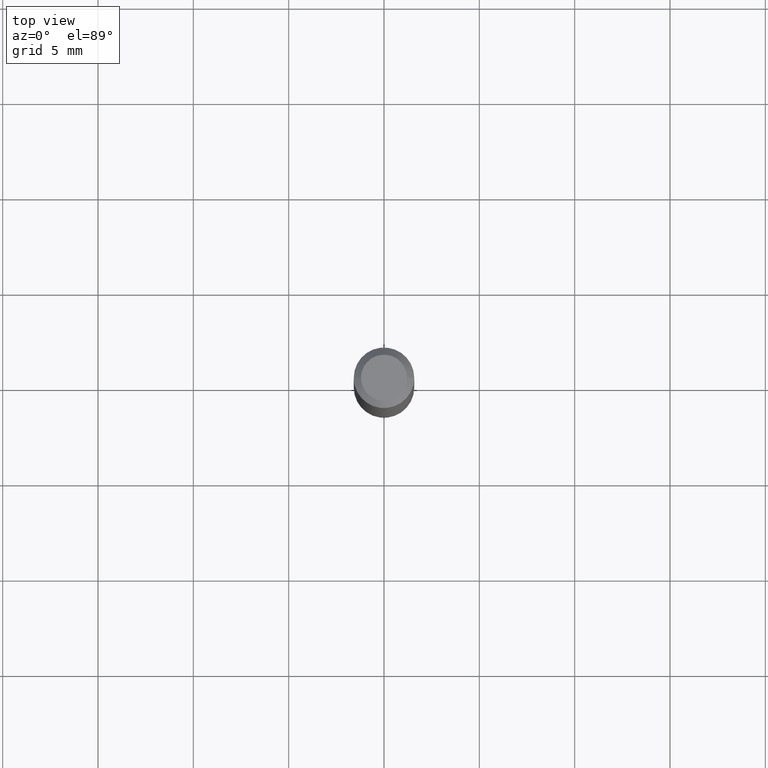
[diagram: clean part render]
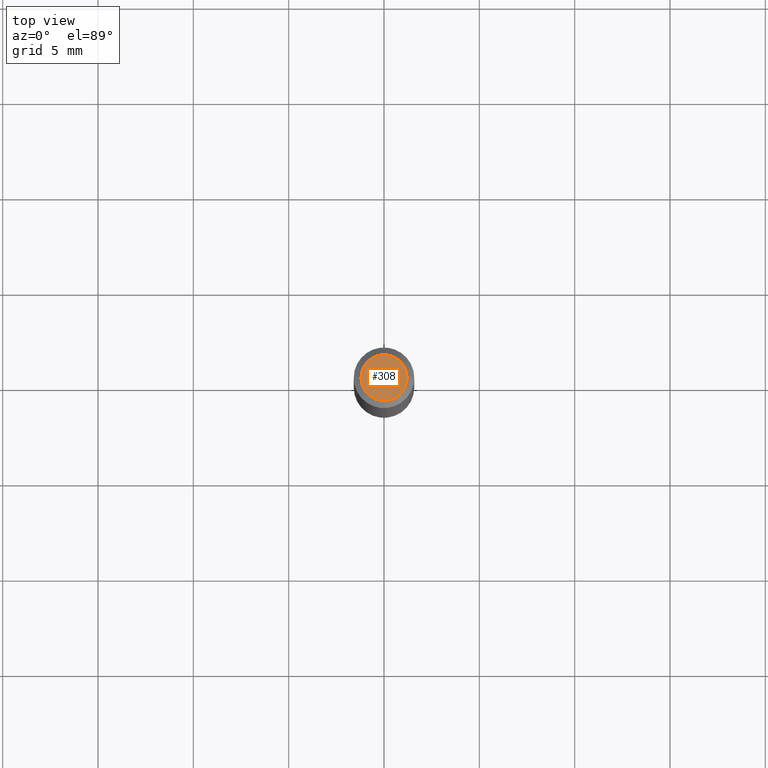
[diagram: same view with one face highlighted and labeled with its STEP entity id]
A machine part, top view. The second image highlights one B-rep face of the part: STEP entity #308.
In plain terms, the highlighted planar face has unit normal (0, -0, -1).
Its self-contained STEP definition (entity closure, byte-faithful):
#6 = CIRCLE ( 'NONE', #30, 0.04749999999999999362 ) ;
#30 = AXIS2_PLACEMENT_3D ( 'NONE', #111, #37, #384 ) ;
#37 = DIRECTION ( 'NONE',  ( -2.445468806185136597E-29, 3.491481338843145583E-15, 1.000000000000000000 ) ) ;
#41 = FACE_OUTER_BOUND ( 'NONE', #366, .T. ) ;
#103 = ORIENTED_EDGE ( 'NONE', *, *, #129, .T. ) ;
#110 = VERTEX_POINT ( 'NONE', #416 ) ;
#111 = CARTESIAN_POINT ( 'NONE',  ( -1.280979716297259006E-44, 1.828899540070383801E-30, 5.238176471756152972E-16 ) ) ;
#116 = DIRECTION ( 'NONE',  ( -1.000000000000000000, 6.982962677686265922E-15, -4.876176775795935793E-29 ) ) ;
#117 = CARTESIAN_POINT ( 'NONE',  ( -0.04749999999999999362, 3.578768372314219874E-16, 5.238176471756128320E-16 ) ) ;
#129 = EDGE_CURVE ( 'NONE', #110, #283, #185, .T. ) ;
#154 = DIRECTION ( 'NONE',  ( 2.438088387897960049E-29, -3.491481338843145188E-15, -1.000000000000000000 ) ) ;
#164 = CARTESIAN_POINT ( 'NONE',  ( -1.280979716297259006E-44, 1.828899540070383801E-30, 5.238176471756152972E-16 ) ) ;
#173 = DIRECTION ( 'NONE',  ( -2.445468806185136597E-29, 3.491481338843145583E-15, 1.000000000000000000 ) ) ;
#185 = CIRCLE ( 'NONE', #449, 0.04749999999999999362 ) ;
#249 = DIRECTION ( 'NONE',  ( 1.000000000000000000, -6.982962677686267499E-15, 4.852736867747366768E-29 ) ) ;
#253 = EDGE_CURVE ( 'NONE', #283, #110, #6, .T. ) ;
#283 = VERTEX_POINT ( 'NONE', #117 ) ;
#308 = ADVANCED_FACE ( 'NONE', ( #41 ), #342, .F. ) ;
#342 = PLANE ( 'NONE',  #437 ) ;
#366 = EDGE_LOOP ( 'NONE', ( #371, #103 ) ) ;
#371 = ORIENTED_EDGE ( 'NONE', *, *, #253, .T. ) ;
#382 = CARTESIAN_POINT ( 'NONE',  ( 3.316907271900976096E-16, 0.04749999999999999362, 9.606345999275825217E-17 ) ) ;
#384 = DIRECTION ( 'NONE',  ( 1.000000000000000000, -6.982962677686267499E-15, 4.852736867747366768E-29 ) ) ;
#416 = CARTESIAN_POINT ( 'NONE',  ( 0.04749999999999999362, -4.035134999187569255E-16, 5.238176471756178610E-16 ) ) ;
#437 = AXIS2_PLACEMENT_3D ( 'NONE', #382, #154, #116 ) ;
#449 = AXIS2_PLACEMENT_3D ( 'NONE', #164, #173, #249 ) ;